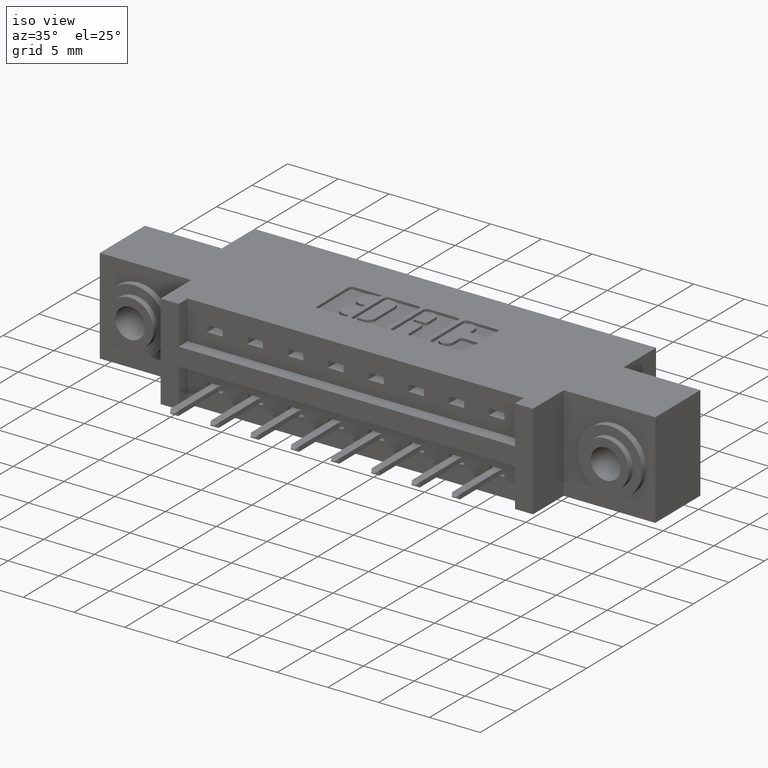
[diagram: clean part render]
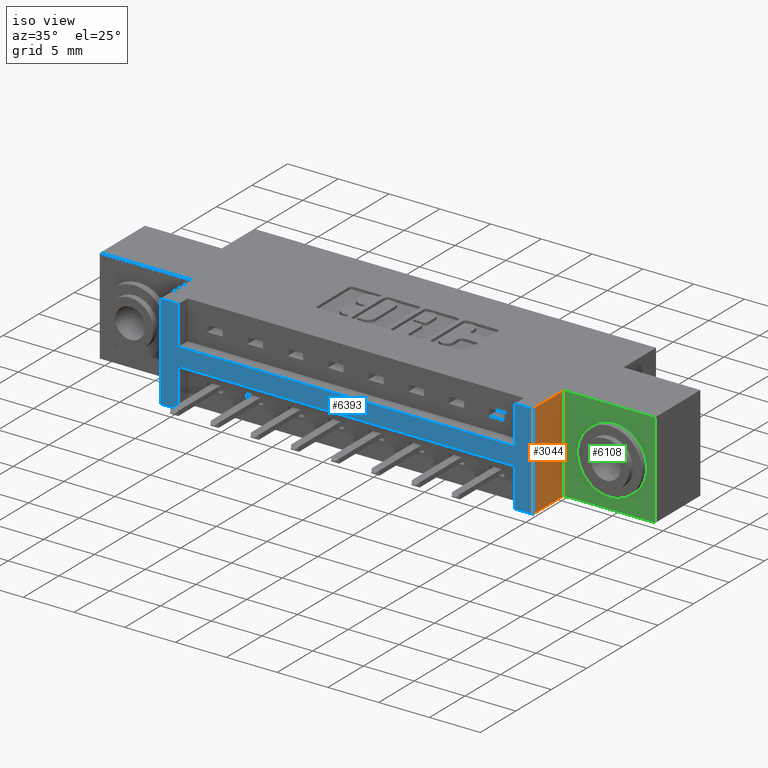
[diagram: same view with three faces highlighted in distinct colors, each labeled with its STEP entity id]
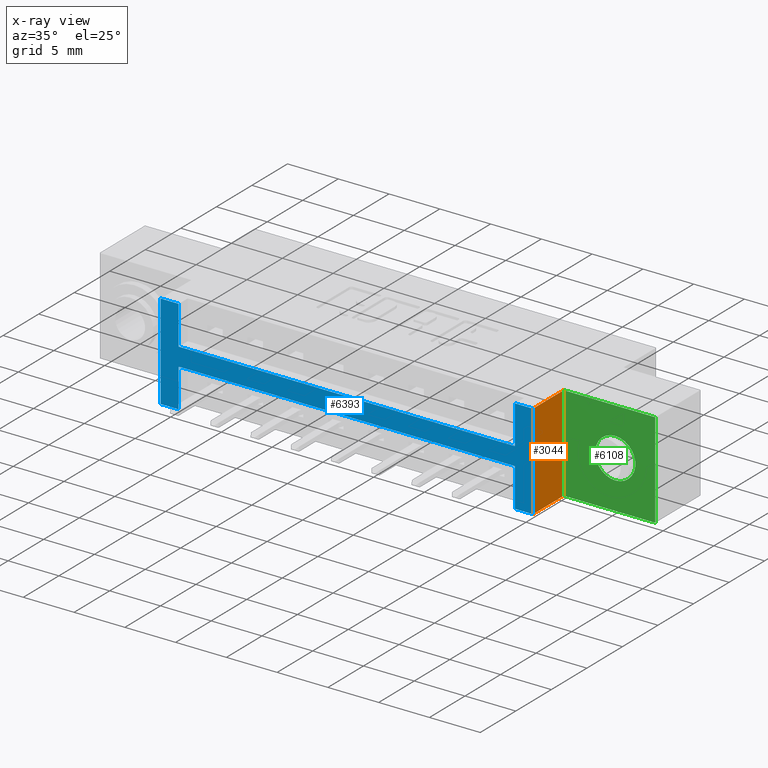
[diagram: x-ray of the same camera — body ghosted, the three highlighted faces saturated]
A machine part, iso view with three faces highlighted in distinct colors.
The next image is the same camera in x-ray (body ghosted, the three faces saturated) — at least one of them is partly hidden behind the body in this view.
Their STEP definitions:

[orange] entity #3044 — the highlighted planar face has unit normal (-1, 0, 0).
#800 = DIRECTION ( 'NONE',  ( 0.0000000000000000000, 0.0000000000000000000, -1.000000000000000000 ) ) ;
#813 = VECTOR ( 'NONE', #800, 39.37007874015748100 ) ;
#1263 = CARTESIAN_POINT ( 'NONE',  ( 1.799000000000000200, 0.1699999999999999800, 1.768389977968778300E-016 ) ) ;
#1632 = CARTESIAN_POINT ( 'NONE',  ( 1.799000000000000200, 0.0000000000000000000, 0.0000000000000000000 ) ) ;
#1918 = LINE ( 'NONE', #1263, #3547 ) ;
#2106 = VERTEX_POINT ( 'NONE', #3501 ) ;
#2118 = LINE ( 'NONE', #6840, #10024 ) ;
#2511 = CARTESIAN_POINT ( 'NONE',  ( 1.799000000000000200, 0.1699999999999999800, 1.768389977968778300E-016 ) ) ;
#3044 = ADVANCED_FACE ( 'NONE', ( #4180 ), #4754, .F. ) ;
#3130 = CARTESIAN_POINT ( 'NONE',  ( 1.799000000000000200, 0.0000000000000000000, 1.768389977968778300E-016 ) ) ;
#3134 = LINE ( 'NONE', #3130, #813 ) ;
#3501 = CARTESIAN_POINT ( 'NONE',  ( 1.799000000000000200, 0.1699999999999999800, -0.3699999999999998300 ) ) ;
#3547 = VECTOR ( 'NONE', #4843, 39.37007874015748100 ) ;
#3932 = CARTESIAN_POINT ( 'NONE',  ( 1.799000000000000200, 0.1699999999999999800, -0.3699999999999998300 ) ) ;
#4026 = DIRECTION ( 'NONE',  ( -1.000000000000000000, 0.0000000000000000000, 0.0000000000000000000 ) ) ;
#4044 = VERTEX_POINT ( 'NONE', #5468 ) ;
#4180 = FACE_OUTER_BOUND ( 'NONE', #11222, .T. ) ;
#4599 = ORIENTED_EDGE ( 'NONE', *, *, #10929, .T. ) ;
#4754 = PLANE ( 'NONE',  #10677 ) ;
#4843 = DIRECTION ( 'NONE',  ( 0.0000000000000000000, 0.0000000000000000000, -1.000000000000000000 ) ) ;
#4864 = CARTESIAN_POINT ( 'NONE',  ( 1.799000000000000200, 0.1699999999999999800, 1.768389977968778300E-016 ) ) ;
#5468 = CARTESIAN_POINT ( 'NONE',  ( 1.799000000000000200, 0.0000000000000000000, -0.3699999999999998300 ) ) ;
#6600 = EDGE_CURVE ( 'NONE', #8442, #2106, #1918, .T. ) ;
#6840 = CARTESIAN_POINT ( 'NONE',  ( 1.799000000000000200, 0.1699999999999999800, 1.768389977968778300E-016 ) ) ;
#7349 = VERTEX_POINT ( 'NONE', #1632 ) ;
#8336 = DIRECTION ( 'NONE',  ( -0.0000000000000000000, -1.000000000000000000, -0.0000000000000000000 ) ) ;
#8442 = VERTEX_POINT ( 'NONE', #2511 ) ;
#8851 = EDGE_CURVE ( 'NONE', #8442, #7349, #2118, .T. ) ;
#9170 = EDGE_CURVE ( 'NONE', #2106, #4044, #9741, .T. ) ;
#9511 = ORIENTED_EDGE ( 'NONE', *, *, #8851, .T. ) ;
#9616 = VECTOR ( 'NONE', #8336, 39.37007874015748100 ) ;
#9741 = LINE ( 'NONE', #3932, #9616 ) ;
#9784 = ORIENTED_EDGE ( 'NONE', *, *, #9170, .F. ) ;
#10024 = VECTOR ( 'NONE', #11232, 39.37007874015748100 ) ;
#10304 = ORIENTED_EDGE ( 'NONE', *, *, #6600, .F. ) ;
#10677 = AXIS2_PLACEMENT_3D ( 'NONE', #4864, #4026, #11018 ) ;
#10929 = EDGE_CURVE ( 'NONE', #7349, #4044, #3134, .T. ) ;
#11018 = DIRECTION ( 'NONE',  ( 0.0000000000000000000, 0.0000000000000000000, 1.000000000000000000 ) ) ;
#11222 = EDGE_LOOP ( 'NONE', ( #4599, #9784, #10304, #9511 ) ) ;
#11232 = DIRECTION ( 'NONE',  ( -0.0000000000000000000, -1.000000000000000000, -0.0000000000000000000 ) ) ;

[blue] entity #6393 — the highlighted planar face has unit normal (0, -1, 0).
#123 = ORIENTED_EDGE ( 'NONE', *, *, #5827, .F. ) ;
#470 = VECTOR ( 'NONE', #2613, 39.37007874015748100 ) ;
#517 = DIRECTION ( 'NONE',  ( 0.0000000000000000000, -1.000000000000000000, 0.0000000000000000000 ) ) ;
#575 = VECTOR ( 'NONE', #3083, 39.37007874015748100 ) ;
#583 = DIRECTION ( 'NONE',  ( 0.0000000000000000000, -0.0000000000000000000, -1.000000000000000000 ) ) ;
#602 = VERTEX_POINT ( 'NONE', #6666 ) ;
#727 = ORIENTED_EDGE ( 'NONE', *, *, #7123, .F. ) ;
#800 = DIRECTION ( 'NONE',  ( 0.0000000000000000000, 0.0000000000000000000, -1.000000000000000000 ) ) ;
#813 = VECTOR ( 'NONE', #800, 39.37007874015748100 ) ;
#967 = LINE ( 'NONE', #10836, #7146 ) ;
#1154 = DIRECTION ( 'NONE',  ( -1.845843238962339800E-016, -0.0000000000000000000, 1.000000000000000000 ) ) ;
#1341 = VERTEX_POINT ( 'NONE', #5607 ) ;
#1586 = DIRECTION ( 'NONE',  ( 1.000000000000000000, 0.0000000000000000000, 0.0000000000000000000 ) ) ;
#1632 = CARTESIAN_POINT ( 'NONE',  ( 1.799000000000000200, 0.0000000000000000000, 0.0000000000000000000 ) ) ;
#1645 = CARTESIAN_POINT ( 'NONE',  ( 0.0000000000000000000, 0.0000000000000000000, 0.0000000000000000000 ) ) ;
#1655 = VERTEX_POINT ( 'NONE', #4121 ) ;
#1729 = ORIENTED_EDGE ( 'NONE', *, *, #10288, .F. ) ;
#1800 = VECTOR ( 'NONE', #1154, 39.37007874015748100 ) ;
#2193 = EDGE_CURVE ( 'NONE', #1655, #602, #3289, .T. ) ;
#2238 = PLANE ( 'NONE',  #8373 ) ;
#2292 = CARTESIAN_POINT ( 'NONE',  ( 1.729000000000000100, 0.0000000000000000000, 0.0000000000000000000 ) ) ;
#2556 = DIRECTION ( 'NONE',  ( -1.000000000000000000, -0.0000000000000000000, -6.341337032646850900E-017 ) ) ;
#2567 = CARTESIAN_POINT ( 'NONE',  ( 1.729000000000000100, 0.0000000000000000000, -0.1499999999999999900 ) ) ;
#2613 = DIRECTION ( 'NONE',  ( 0.0000000000000000000, 0.0000000000000000000, 1.000000000000000000 ) ) ;
#2728 = VECTOR ( 'NONE', #3450, 39.37007874015748100 ) ;
#2984 = VERTEX_POINT ( 'NONE', #2567 ) ;
#3015 = CARTESIAN_POINT ( 'NONE',  ( 0.0000000000000000000, 0.0000000000000000000, 0.0000000000000000000 ) ) ;
#3036 = VECTOR ( 'NONE', #6177, 39.37007874015748100 ) ;
#3083 = DIRECTION ( 'NONE',  ( 0.0000000000000000000, 0.0000000000000000000, -1.000000000000000000 ) ) ;
#3101 = CARTESIAN_POINT ( 'NONE',  ( 0.4249999999999999300, 0.0000000000000000000, 0.0000000000000000000 ) ) ;
#3130 = CARTESIAN_POINT ( 'NONE',  ( 1.799000000000000200, 0.0000000000000000000, 1.768389977968778300E-016 ) ) ;
#3134 = LINE ( 'NONE', #3130, #813 ) ;
#3289 = LINE ( 'NONE', #8094, #6451 ) ;
#3450 = DIRECTION ( 'NONE',  ( -0.0000000000000000000, -0.0000000000000000000, 1.000000000000000000 ) ) ;
#3504 = ORIENTED_EDGE ( 'NONE', *, *, #2193, .F. ) ;
#3952 = EDGE_CURVE ( 'NONE', #5364, #10808, #7580, .T. ) ;
#3962 = LINE ( 'NONE', #6402, #1800 ) ;
#4044 = VERTEX_POINT ( 'NONE', #5468 ) ;
#4121 = CARTESIAN_POINT ( 'NONE',  ( 0.4249999999999999900, 0.0000000000000000000, -0.3700000000000000000 ) ) ;
#4124 = LINE ( 'NONE', #3015, #6312 ) ;
#4551 = DIRECTION ( 'NONE',  ( -1.000000000000000000, -0.0000000000000000000, -0.0000000000000000000 ) ) ;
#4593 = EDGE_CURVE ( 'NONE', #6411, #1341, #7173, .T. ) ;
#4665 = EDGE_LOOP ( 'NONE', ( #9381, #1729, #10239, #727, #7277, #8402, #123, #3504, #5993, #10616, #7809, #6474 ) ) ;
#4933 = LINE ( 'NONE', #1645, #8927 ) ;
#5348 = CARTESIAN_POINT ( 'NONE',  ( 0.4249999999999999900, 0.0000000000000000000, -0.2200000000000000000 ) ) ;
#5364 = VERTEX_POINT ( 'NONE', #8165 ) ;
#5468 = CARTESIAN_POINT ( 'NONE',  ( 1.799000000000000200, 0.0000000000000000000, -0.3699999999999998300 ) ) ;
#5607 = CARTESIAN_POINT ( 'NONE',  ( 0.4249999999999999300, 0.0000000000000000000, -0.1499999999999999900 ) ) ;
#5827 = EDGE_CURVE ( 'NONE', #602, #6423, #3962, .T. ) ;
#5993 = ORIENTED_EDGE ( 'NONE', *, *, #9371, .F. ) ;
#6007 = LINE ( 'NONE', #8511, #2728 ) ;
#6144 = LINE ( 'NONE', #6769, #10488 ) ;
#6177 = DIRECTION ( 'NONE',  ( -0.0000000000000000000, -0.0000000000000000000, -1.000000000000000000 ) ) ;
#6255 = CARTESIAN_POINT ( 'NONE',  ( 1.729000000000000100, 0.0000000000000000000, -0.3700000000000000000 ) ) ;
#6312 = VECTOR ( 'NONE', #6572, 39.37007874015748100 ) ;
#6393 = ADVANCED_FACE ( 'NONE', ( #10112 ), #2238, .T. ) ;
#6402 = CARTESIAN_POINT ( 'NONE',  ( 0.3549999999999999800, 0.0000000000000000000, 0.0000000000000000000 ) ) ;
#6411 = VERTEX_POINT ( 'NONE', #3101 ) ;
#6423 = VERTEX_POINT ( 'NONE', #7489 ) ;
#6451 = VECTOR ( 'NONE', #2556, 39.37007874015748100 ) ;
#6474 = ORIENTED_EDGE ( 'NONE', *, *, #10751, .F. ) ;
#6572 = DIRECTION ( 'NONE',  ( 1.000000000000000000, 0.0000000000000000000, 0.0000000000000000000 ) ) ;
#6666 = CARTESIAN_POINT ( 'NONE',  ( 0.3550000000000000400, 0.0000000000000000000, -0.3700000000000001600 ) ) ;
#6769 = CARTESIAN_POINT ( 'NONE',  ( 0.4249999999999999300, 0.0000000000000000000, -0.1499999999999999900 ) ) ;
#6890 = DIRECTION ( 'NONE',  ( -1.000000000000000000, -0.0000000000000000000, -6.341337032646850900E-017 ) ) ;
#6973 = CARTESIAN_POINT ( 'NONE',  ( 0.4249999999999999900, 0.0000000000000000000, -0.2200000000000000000 ) ) ;
#7123 = EDGE_CURVE ( 'NONE', #1341, #2984, #6144, .T. ) ;
#7146 = VECTOR ( 'NONE', #6890, 39.37007874015748100 ) ;
#7173 = LINE ( 'NONE', #10876, #575 ) ;
#7277 = ORIENTED_EDGE ( 'NONE', *, *, #4593, .F. ) ;
#7349 = VERTEX_POINT ( 'NONE', #1632 ) ;
#7489 = CARTESIAN_POINT ( 'NONE',  ( 0.3549999999999999800, 0.0000000000000000000, 0.0000000000000000000 ) ) ;
#7580 = LINE ( 'NONE', #6255, #470 ) ;
#7809 = ORIENTED_EDGE ( 'NONE', *, *, #3952, .F. ) ;
#8016 = CARTESIAN_POINT ( 'NONE',  ( 1.729000000000000100, 0.0000000000000000000, -0.2200000000000000000 ) ) ;
#8094 = CARTESIAN_POINT ( 'NONE',  ( 0.0000000000000000000, 0.0000000000000000000, -0.3700000000000001600 ) ) ;
#8165 = CARTESIAN_POINT ( 'NONE',  ( 1.729000000000000100, 0.0000000000000000000, -0.3700000000000000000 ) ) ;
#8373 = AXIS2_PLACEMENT_3D ( 'NONE', #9380, #517, #583 ) ;
#8402 = ORIENTED_EDGE ( 'NONE', *, *, #9746, .F. ) ;
#8511 = CARTESIAN_POINT ( 'NONE',  ( 1.729000000000000100, 0.0000000000000000000, 0.0000000000000000000 ) ) ;
#8560 = EDGE_CURVE ( 'NONE', #10808, #10348, #11068, .T. ) ;
#8862 = DIRECTION ( 'NONE',  ( 1.000000000000000000, 0.0000000000000000000, 0.0000000000000000000 ) ) ;
#8927 = VECTOR ( 'NONE', #8862, 39.37007874015748100 ) ;
#9371 = EDGE_CURVE ( 'NONE', #10348, #1655, #10012, .T. ) ;
#9380 = CARTESIAN_POINT ( 'NONE',  ( 0.0000000000000000000, 0.0000000000000000000, -0.3700000000000001600 ) ) ;
#9381 = ORIENTED_EDGE ( 'NONE', *, *, #10929, .F. ) ;
#9651 = CARTESIAN_POINT ( 'NONE',  ( 0.4249999999999999900, 0.0000000000000000000, -0.3700000000000000000 ) ) ;
#9746 = EDGE_CURVE ( 'NONE', #6423, #6411, #4933, .T. ) ;
#10012 = LINE ( 'NONE', #9651, #3036 ) ;
#10112 = FACE_OUTER_BOUND ( 'NONE', #4665, .T. ) ;
#10239 = ORIENTED_EDGE ( 'NONE', *, *, #11265, .F. ) ;
#10288 = EDGE_CURVE ( 'NONE', #10297, #7349, #4124, .T. ) ;
#10297 = VERTEX_POINT ( 'NONE', #2292 ) ;
#10348 = VERTEX_POINT ( 'NONE', #5348 ) ;
#10488 = VECTOR ( 'NONE', #1586, 39.37007874015748100 ) ;
#10530 = VECTOR ( 'NONE', #4551, 39.37007874015748100 ) ;
#10616 = ORIENTED_EDGE ( 'NONE', *, *, #8560, .F. ) ;
#10751 = EDGE_CURVE ( 'NONE', #4044, #5364, #967, .T. ) ;
#10808 = VERTEX_POINT ( 'NONE', #8016 ) ;
#10836 = CARTESIAN_POINT ( 'NONE',  ( 0.0000000000000000000, 0.0000000000000000000, -0.3700000000000001600 ) ) ;
#10876 = CARTESIAN_POINT ( 'NONE',  ( 0.4249999999999999300, 0.0000000000000000000, 0.0000000000000000000 ) ) ;
#10929 = EDGE_CURVE ( 'NONE', #7349, #4044, #3134, .T. ) ;
#11068 = LINE ( 'NONE', #6973, #10530 ) ;
#11265 = EDGE_CURVE ( 'NONE', #2984, #10297, #6007, .T. ) ;

[green] entity #6108 — the highlighted planar face has unit normal (0, -1, 0).
#82 = DIRECTION ( 'NONE',  ( 0.0000000000000000000, 0.0000000000000000000, -1.000000000000000000 ) ) ;
#88 = ORIENTED_EDGE ( 'NONE', *, *, #8531, .F. ) ;
#212 = AXIS2_PLACEMENT_3D ( 'NONE', #3417, #4442, #82 ) ;
#605 = EDGE_CURVE ( 'NONE', #9214, #6091, #9351, .T. ) ;
#744 = CARTESIAN_POINT ( 'NONE',  ( 2.153999999999999900, 0.1699999999999999800, 2.637889205363399100E-016 ) ) ;
#757 = AXIS2_PLACEMENT_3D ( 'NONE', #9189, #3936, #6581 ) ;
#915 = ORIENTED_EDGE ( 'NONE', *, *, #6521, .T. ) ;
#1263 = CARTESIAN_POINT ( 'NONE',  ( 1.799000000000000200, 0.1699999999999999800, 1.768389977968778300E-016 ) ) ;
#1840 = CIRCLE ( 'NONE', #212, 0.07800000000000009700 ) ;
#1918 = LINE ( 'NONE', #1263, #3547 ) ;
#2106 = VERTEX_POINT ( 'NONE', #3501 ) ;
#2143 = CARTESIAN_POINT ( 'NONE',  ( 1.998999999999999900, 0.1699999999999999800, -0.2630000000000001200 ) ) ;
#2160 = PLANE ( 'NONE',  #757 ) ;
#2234 = CARTESIAN_POINT ( 'NONE',  ( 1.998999999999999900, 0.1699999999999999800, -0.1850000000000000000 ) ) ;
#2399 = EDGE_CURVE ( 'NONE', #6725, #10234, #8222, .T. ) ;
#2479 = VECTOR ( 'NONE', #4391, 39.37007874015748100 ) ;
#2511 = CARTESIAN_POINT ( 'NONE',  ( 1.799000000000000200, 0.1699999999999999800, 1.768389977968778300E-016 ) ) ;
#2641 = CARTESIAN_POINT ( 'NONE',  ( 2.153999999999999900, 0.1699999999999999800, -0.3699999999999997200 ) ) ;
#2796 = LINE ( 'NONE', #10364, #10033 ) ;
#3164 = CARTESIAN_POINT ( 'NONE',  ( 2.153999999999999900, 0.1699999999999999800, -0.3699999999999997200 ) ) ;
#3417 = CARTESIAN_POINT ( 'NONE',  ( 1.998999999999999900, 0.1699999999999999800, -0.1850000000000000000 ) ) ;
#3484 = EDGE_CURVE ( 'NONE', #10234, #8442, #2796, .T. ) ;
#3501 = CARTESIAN_POINT ( 'NONE',  ( 1.799000000000000200, 0.1699999999999999800, -0.3699999999999998300 ) ) ;
#3547 = VECTOR ( 'NONE', #4843, 39.37007874015748100 ) ;
#3936 = DIRECTION ( 'NONE',  ( 0.0000000000000000000, -1.000000000000000000, 0.0000000000000000000 ) ) ;
#4116 = FACE_BOUND ( 'NONE', #9749, .T. ) ;
#4197 = DIRECTION ( 'NONE',  ( -1.000000000000000000, 0.0000000000000000000, -2.449293598294706400E-016 ) ) ;
#4391 = DIRECTION ( 'NONE',  ( -0.0000000000000000000, -0.0000000000000000000, 1.000000000000000000 ) ) ;
#4442 = DIRECTION ( 'NONE',  ( 0.0000000000000000000, -1.000000000000000000, -0.0000000000000000000 ) ) ;
#4571 = DIRECTION ( 'NONE',  ( 1.000000000000000000, -0.0000000000000000000, 1.923836615256523900E-016 ) ) ;
#4843 = DIRECTION ( 'NONE',  ( 0.0000000000000000000, 0.0000000000000000000, -1.000000000000000000 ) ) ;
#5728 = DIRECTION ( 'NONE',  ( 0.0000000000000000000, 0.0000000000000000000, -1.000000000000000000 ) ) ;
#6091 = VERTEX_POINT ( 'NONE', #6618 ) ;
#6092 = ORIENTED_EDGE ( 'NONE', *, *, #6600, .T. ) ;
#6108 = ADVANCED_FACE ( 'NONE', ( #4116, #9038 ), #2160, .T. ) ;
#6295 = VECTOR ( 'NONE', #4571, 39.37007874015748100 ) ;
#6521 = EDGE_CURVE ( 'NONE', #2106, #6725, #6559, .T. ) ;
#6559 = LINE ( 'NONE', #2641, #6295 ) ;
#6581 = DIRECTION ( 'NONE',  ( 0.0000000000000000000, 0.0000000000000000000, -1.000000000000000000 ) ) ;
#6600 = EDGE_CURVE ( 'NONE', #8442, #2106, #1918, .T. ) ;
#6618 = CARTESIAN_POINT ( 'NONE',  ( 1.998999999999999900, 0.1699999999999999800, -0.1069999999999999300 ) ) ;
#6725 = VERTEX_POINT ( 'NONE', #3164 ) ;
#7700 = ORIENTED_EDGE ( 'NONE', *, *, #2399, .T. ) ;
#8222 = LINE ( 'NONE', #744, #2479 ) ;
#8442 = VERTEX_POINT ( 'NONE', #2511 ) ;
#8531 = EDGE_CURVE ( 'NONE', #6091, #9214, #1840, .T. ) ;
#8723 = ORIENTED_EDGE ( 'NONE', *, *, #3484, .T. ) ;
#8946 = AXIS2_PLACEMENT_3D ( 'NONE', #2234, #10934, #5728 ) ;
#9038 = FACE_OUTER_BOUND ( 'NONE', #9055, .T. ) ;
#9055 = EDGE_LOOP ( 'NONE', ( #8723, #6092, #915, #7700 ) ) ;
#9189 = CARTESIAN_POINT ( 'NONE',  ( 1.799000000000000200, 0.1699999999999999800, 1.768389977968778300E-016 ) ) ;
#9214 = VERTEX_POINT ( 'NONE', #2143 ) ;
#9217 = CARTESIAN_POINT ( 'NONE',  ( 2.153999999999999900, 0.1699999999999999800, 2.637889205363399100E-016 ) ) ;
#9351 = CIRCLE ( 'NONE', #8946, 0.07800000000000009700 ) ;
#9446 = ORIENTED_EDGE ( 'NONE', *, *, #605, .F. ) ;
#9749 = EDGE_LOOP ( 'NONE', ( #88, #9446 ) ) ;
#10033 = VECTOR ( 'NONE', #4197, 39.37007874015748100 ) ;
#10234 = VERTEX_POINT ( 'NONE', #9217 ) ;
#10364 = CARTESIAN_POINT ( 'NONE',  ( 2.153999999999999900, 0.1699999999999999800, 2.637889205363399100E-016 ) ) ;
#10934 = DIRECTION ( 'NONE',  ( 0.0000000000000000000, -1.000000000000000000, -0.0000000000000000000 ) ) ;